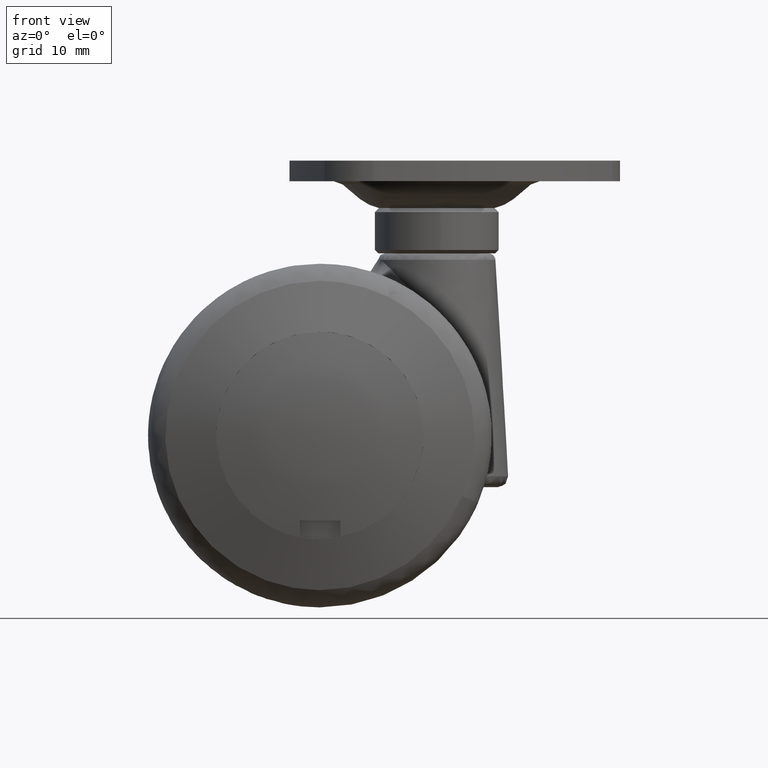
[diagram: clean part render]
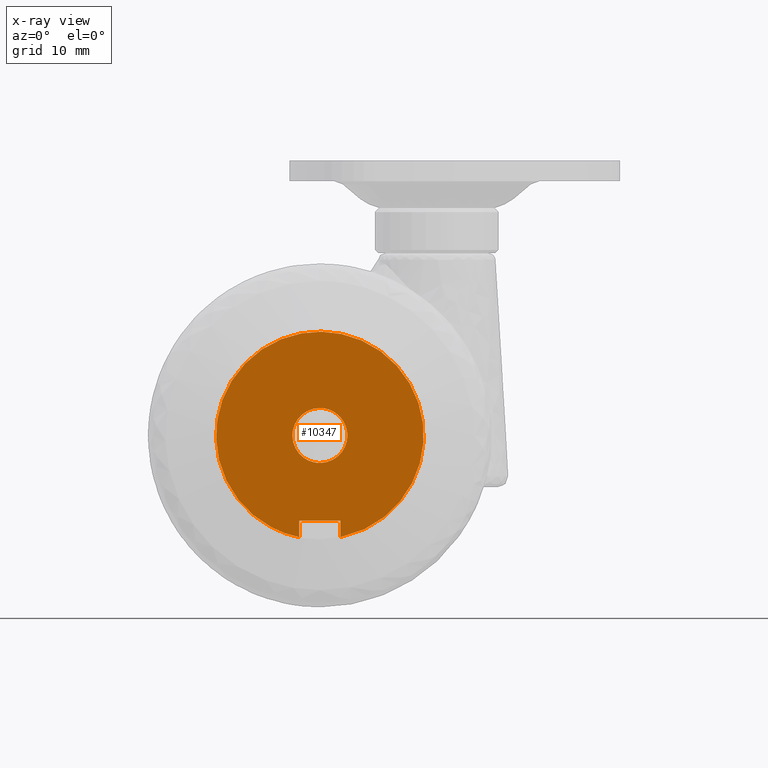
[diagram: x-ray — body ghosted, one internal face saturated and labeled with its STEP entity id]
A machine part, front view, then the same camera in x-ray: the body is ghosted and one INTERNAL B-rep face — a face not visible from any outside direction — is saturated and labeled: STEP entity #10347.
In plain terms, the highlighted face is a freeform B-spline surface patch.
Its self-contained STEP definition (entity closure, byte-faithful):
#8159=CARTESIAN_POINT('',(-3.999847692254721,-20.500000000000000,-0.034906142218503));
#8160=VERTEX_POINT('',#8159);
#8166=CARTESIAN_POINT('',(0.0,-20.500000000000000,4.0));
#8167=VERTEX_POINT('',#8166);
#8168=CARTESIAN_POINT('',(0.0,-20.500000000000000,4.0));
#8169=CARTESIAN_POINT('',(-4.000000000000000,-20.500000000000007,4.000000000000000));
#8170=CARTESIAN_POINT('',(-4.0,-20.500000000000000,0.0));
#8171=CARTESIAN_POINT('',(-4.0,-20.500000000000004,-0.017453403507822));
#8172=CARTESIAN_POINT('',(-3.999847692254722,-20.500000000000000,-0.034906142218503));
#8180=(BOUNDED_CURVE()B_SPLINE_CURVE(2,(#8168,#8169,#8170,#8171,#8172),.UNSPECIFIED.,.F.,.U.)B_SPLINE_CURVE_WITH_KNOTS((3,2,3),(0.500000000000000,0.750000000000000,0.751539894354804),.UNSPECIFIED.)CURVE()GEOMETRIC_REPRESENTATION_ITEM()RATIONAL_B_SPLINE_CURVE((1.0,0.707106781186548,1.0,0.998195901543155,0.996414028054543))REPRESENTATION_ITEM(''));
#8181=EDGE_CURVE('',#8167,#8160,#8180,.T.);
#8183=CARTESIAN_POINT('',(3.969064855282469,-20.500000000000000,0.496512008476681));
#8184=VERTEX_POINT('',#8183);
#8185=CARTESIAN_POINT('',(3.969064855282469,-20.500000000000000,0.496512008476681));
#8186=CARTESIAN_POINT('',(3.530794400318758,-20.500000000000011,4.0));
#8187=CARTESIAN_POINT('',(0.0,-20.500000000000000,4.0));
#8195=(BOUNDED_CURVE()B_SPLINE_CURVE(2,(#8185,#8186,#8187),.UNSPECIFIED.,.F.,.U.)B_SPLINE_CURVE_WITH_KNOTS((3,3),(0.271473928984074,0.500000000000000),.UNSPECIFIED.)CURVE()GEOMETRIC_REPRESENTATION_ITEM()RATIONAL_B_SPLINE_CURVE((0.954005430248767,0.732265053909415,1.0))REPRESENTATION_ITEM(''));
#8196=EDGE_CURVE('',#8184,#8167,#8195,.T.);
#8246=CARTESIAN_POINT('',(0.0,-20.500000000000000,-4.0));
#8247=VERTEX_POINT('',#8246);
#8248=CARTESIAN_POINT('',(0.0,-20.500000000000000,-4.0));
#8249=CARTESIAN_POINT('',(4.000000000000000,-20.500000000000007,-4.000000000000000));
#8250=CARTESIAN_POINT('',(4.0,-20.500000000000000,0.0));
#8251=CARTESIAN_POINT('',(4.000000000000001,-20.499999999999996,0.249219710293183));
#8252=CARTESIAN_POINT('',(3.969064855282469,-20.500000000000000,0.496512008476681));
#8260=(BOUNDED_CURVE()B_SPLINE_CURVE(2,(#8248,#8249,#8250,#8251,#8252),.UNSPECIFIED.,.F.,.U.)B_SPLINE_CURVE_WITH_KNOTS((3,2,3),(0.0,0.250000000000000,0.271473928984074),.UNSPECIFIED.)CURVE()GEOMETRIC_REPRESENTATION_ITEM()RATIONAL_B_SPLINE_CURVE((1.0,0.707106781186548,1.0,0.974841727277132,0.954005430248767))REPRESENTATION_ITEM(''));
#8261=EDGE_CURVE('',#8247,#8184,#8260,.T.);
#8263=CARTESIAN_POINT('',(-3.999847692254722,-20.500000000000000,-0.034906142218503));
#8264=CARTESIAN_POINT('',(-3.965244841933774,-20.500000000000000,-4.000000000000001));
#8265=CARTESIAN_POINT('',(0.0,-20.500000000000000,-4.0));
#8273=(BOUNDED_CURVE()B_SPLINE_CURVE(2,(#8263,#8264,#8265),.UNSPECIFIED.,.F.,.U.)B_SPLINE_CURVE_WITH_KNOTS((3,3),(0.751539894354805,1.0),.UNSPECIFIED.)CURVE()GEOMETRIC_REPRESENTATION_ITEM()RATIONAL_B_SPLINE_CURVE((0.996414028054542,0.708910879643393,1.0))REPRESENTATION_ITEM(''));
#8274=EDGE_CURVE('',#8160,#8247,#8273,.T.);
#9037=CARTESIAN_POINT('',(3.0,-20.499999999998401,-12.400000000000000));
#9038=VERTEX_POINT('',#9037);
#9059=CARTESIAN_POINT('',(-3.0,-20.499999999998401,-12.400000000000000));
#9060=VERTEX_POINT('',#9059);
#9066=CARTESIAN_POINT('',(3.0,-20.499999999998401,-12.400000000000000));
#9067=CARTESIAN_POINT('',(-3.0,-20.499999999998401,-12.400000000000000));
#9068=QUASI_UNIFORM_CURVE('',1,(#9066,#9067),.UNSPECIFIED.,.F.,.U.);
#9069=EDGE_CURVE('',#9038,#9060,#9068,.T.);
#9081=CARTESIAN_POINT('',(3.0,-20.500000000000000,-14.798986451781079));
#9082=VERTEX_POINT('',#9081);
#9102=CARTESIAN_POINT('',(3.0,-20.500000000000000,-14.798986451781079));
#9103=CARTESIAN_POINT('',(3.0,-20.499999999998401,-12.400000000000000));
#9104=QUASI_UNIFORM_CURVE('',1,(#9102,#9103),.UNSPECIFIED.,.F.,.U.);
#9105=EDGE_CURVE('',#9082,#9038,#9104,.T.);
#9131=CARTESIAN_POINT('',(-3.0,-20.499999999998401,-14.798986451781060));
#9132=VERTEX_POINT('',#9131);
#9138=CARTESIAN_POINT('',(-3.0,-20.499999999998401,-12.400000000000000));
#9139=CARTESIAN_POINT('',(-3.0,-20.499999999998401,-14.798986451781060));
#9140=QUASI_UNIFORM_CURVE('',1,(#9138,#9139),.UNSPECIFIED.,.F.,.U.);
#9141=EDGE_CURVE('',#9060,#9132,#9140,.T.);
#10256=CARTESIAN_POINT('',(3.000000000000001,-20.500000000000000,-14.798986451781079));
#10257=CARTESIAN_POINT('',(16.388397175553621,-20.500000000000000,-12.084936293175330));
#10258=CARTESIAN_POINT('',(15.024558153601300,-20.500000000000000,1.507531853412334));
#10259=CARTESIAN_POINT('',(13.660719131648975,-20.500000000000000,15.100000000000000));
#10260=CARTESIAN_POINT('',(0.0,-20.500000000000000,15.100000000000000));
#10261=CARTESIAN_POINT('',(-13.660719131648975,-20.500000000000000,15.100000000000000));
#10262=CARTESIAN_POINT('',(-15.024558153601300,-20.500000000000000,1.507531853412335));
#10263=CARTESIAN_POINT('',(-16.388397175553621,-20.500000000000000,-12.084936293175321));
#10264=CARTESIAN_POINT('',(-3.0,-20.499999999998401,-14.798986451781060));
#10272=(BOUNDED_CURVE()B_SPLINE_CURVE(2,(#10256,#10257,#10258,#10259,#10260,#10261,#10262,#10263,#10264),.UNSPECIFIED.,.F.,.U.)B_SPLINE_CURVE_WITH_KNOTS((3,2,2,2,3),(0.0,0.250000000000000,0.500000000000000,0.750000000000000,1.0),.UNSPECIFIED.)CURVE()GEOMETRIC_REPRESENTATION_ITEM()RATIONAL_B_SPLINE_CURVE((1.0,0.741564746527098,1.0,0.741564746527098,1.0,0.741564746527098,1.0,0.741564746527098,1.0))REPRESENTATION_ITEM(''));
#10273=EDGE_CURVE('',#9082,#9132,#10272,.T.);
#10330=CARTESIAN_POINT('',(-16.608457826498501,-20.500000000000000,-16.292440767097499));
#10331=CARTESIAN_POINT('',(-16.608457826498501,-20.500000000000000,16.593455117269610));
#10332=CARTESIAN_POINT('',(16.608457542272220,-20.500000000000000,-16.292440767097499));
#10333=CARTESIAN_POINT('',(16.608457542272220,-20.500000000000000,16.593455117269610));
#10334=B_SPLINE_SURFACE_WITH_KNOTS('',1,1,((#10330,#10332),(#10331,#10333)),.UNSPECIFIED.,.F.,.F.,.U.,(2,2),(2,2),(0.0,32.885895884367123),(0.0,33.216915368770707),.UNSPECIFIED.);
#10335=ORIENTED_EDGE('',*,*,#9069,.T.);
#10336=ORIENTED_EDGE('',*,*,#9141,.T.);
#10337=ORIENTED_EDGE('',*,*,#10273,.F.);
#10338=ORIENTED_EDGE('',*,*,#9105,.T.);
#10339=EDGE_LOOP('',(#10335,#10336,#10337,#10338));
#10340=FACE_OUTER_BOUND('',#10339,.T.);
#10341=ORIENTED_EDGE('',*,*,#8181,.T.);
#10342=ORIENTED_EDGE('',*,*,#8274,.T.);
#10343=ORIENTED_EDGE('',*,*,#8261,.T.);
#10344=ORIENTED_EDGE('',*,*,#8196,.T.);
#10345=EDGE_LOOP('',(#10341,#10342,#10343,#10344));
#10346=FACE_BOUND('',#10345,.T.);
#10347=ADVANCED_FACE('',(#10340,#10346),#10334,.T.);